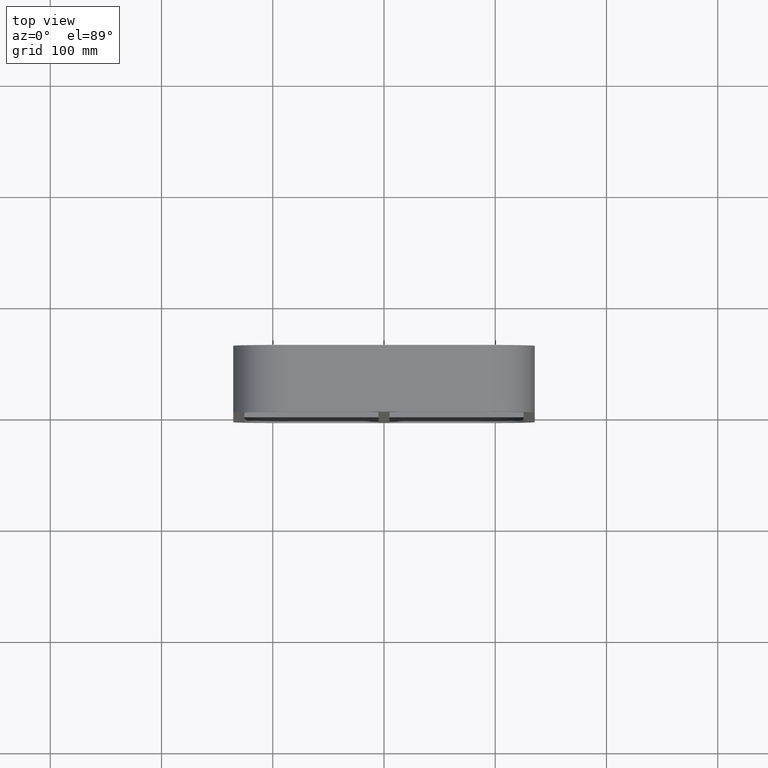
[diagram: clean part render]
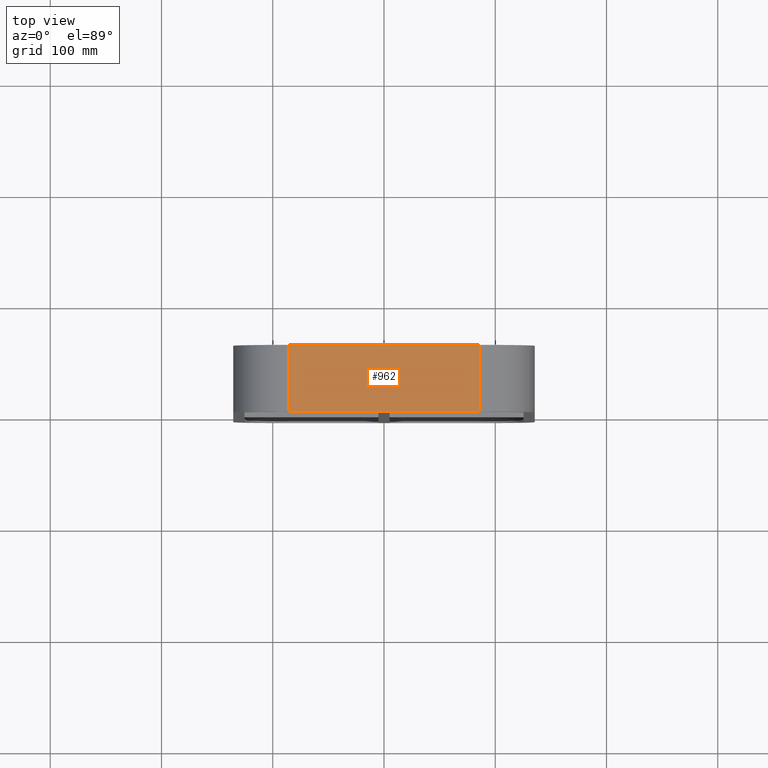
[diagram: same view with one face highlighted and labeled with its STEP entity id]
A machine part, top view. The second image highlights one B-rep face of the part: STEP entity #962.
In plain terms, the highlighted planar face has unit normal (0, 0, 1).
Its self-contained STEP definition (entity closure, byte-faithful):
#362=CARTESIAN_POINT('',(-85.500000000000043,57.0,298.00000000000006));
#363=VERTEX_POINT('',#362);
#371=CARTESIAN_POINT('',(85.499999999999972,57.0,298.00000000000006));
#372=VERTEX_POINT('',#371);
#373=CARTESIAN_POINT('',(-85.500000000000057,57.0,298.00000000000006));
#374=DIRECTION('',(1.0,0.0,0.0));
#375=VECTOR('',#374,171.0);
#376=LINE('',#373,#375);
#377=EDGE_CURVE('',#363,#372,#376,.T.);
#750=CARTESIAN_POINT('',(85.499999999999972,-3.0,298.00000000000006));
#751=VERTEX_POINT('',#750);
#759=CARTESIAN_POINT('',(-85.500000000000043,-3.0,298.00000000000006));
#760=VERTEX_POINT('',#759);
#761=CARTESIAN_POINT('',(85.499999999999943,-3.0,298.00000000000006));
#762=DIRECTION('',(-1.0,0.0,0.0));
#763=VECTOR('',#762,171.0);
#764=LINE('',#761,#763);
#765=EDGE_CURVE('',#751,#760,#764,.T.);
#886=CARTESIAN_POINT('',(85.499999999999972,57.0,298.00000000000006));
#887=DIRECTION('',(0.0,-1.0,0.0));
#888=VECTOR('',#887,60.0);
#889=LINE('',#886,#888);
#890=EDGE_CURVE('',#372,#751,#889,.T.);
#942=CARTESIAN_POINT('',(-85.500000000000043,-3.0,298.00000000000006));
#943=DIRECTION('',(0.0,1.0,0.0));
#944=VECTOR('',#943,60.0);
#945=LINE('',#942,#944);
#946=EDGE_CURVE('',#760,#363,#945,.T.);
#951=CARTESIAN_POINT('',(-135.50000000000006,0.0,298.00000000000006));
#952=DIRECTION('',(0.0,0.0,1.0));
#953=DIRECTION('',(1.0,0.0,0.0));
#954=AXIS2_PLACEMENT_3D('',#951,#952,#953);
#955=PLANE('',#954);
#956=ORIENTED_EDGE('',*,*,#890,.F.);
#957=ORIENTED_EDGE('',*,*,#377,.F.);
#958=ORIENTED_EDGE('',*,*,#946,.F.);
#959=ORIENTED_EDGE('',*,*,#765,.F.);
#960=EDGE_LOOP('',(#956,#957,#958,#959));
#961=FACE_OUTER_BOUND('',#960,.T.);
#962=ADVANCED_FACE('',(#961),#955,.T.);